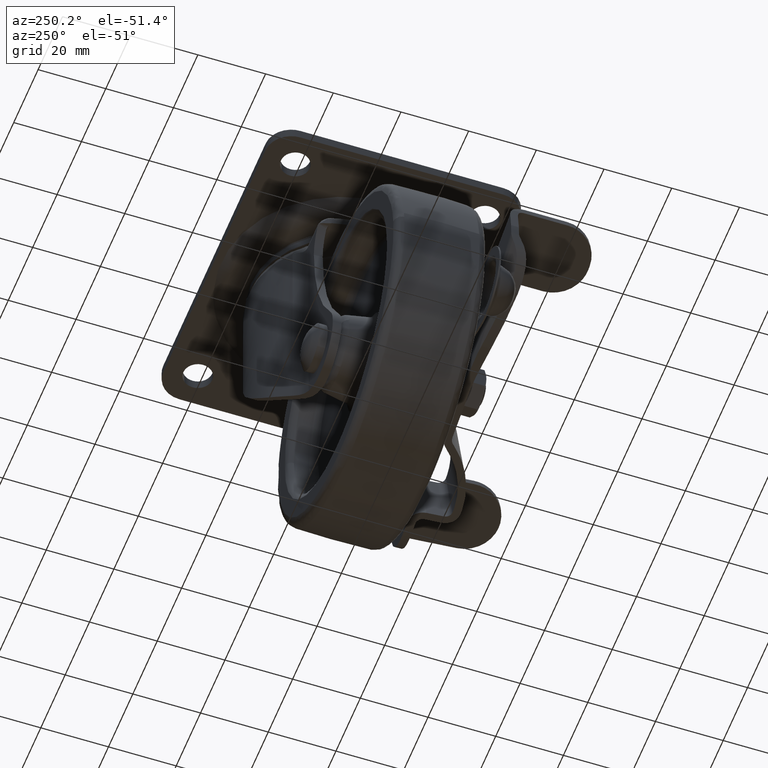
[diagram: clean part render]
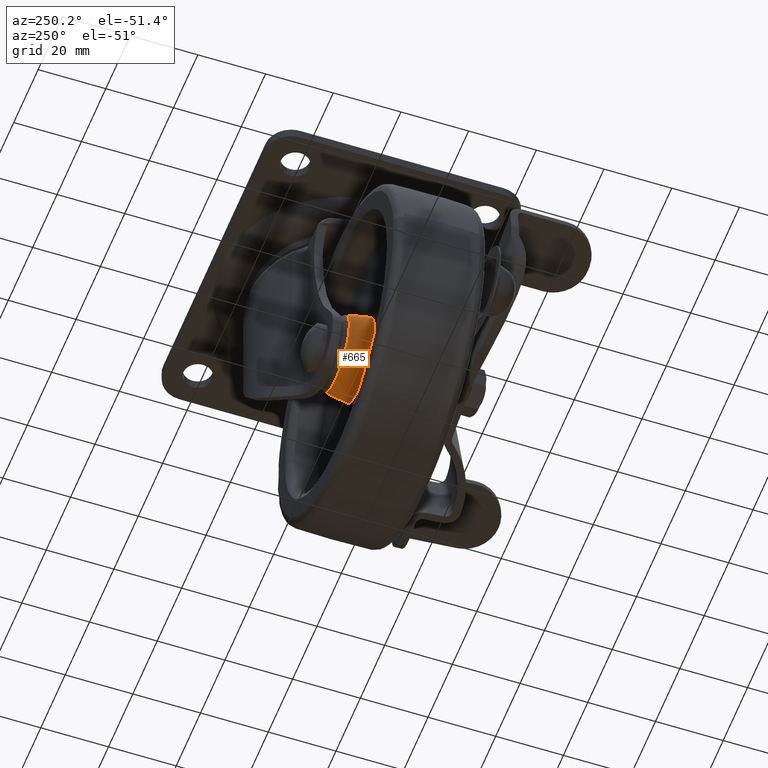
[diagram: same view with one face highlighted and labeled with its STEP entity id]
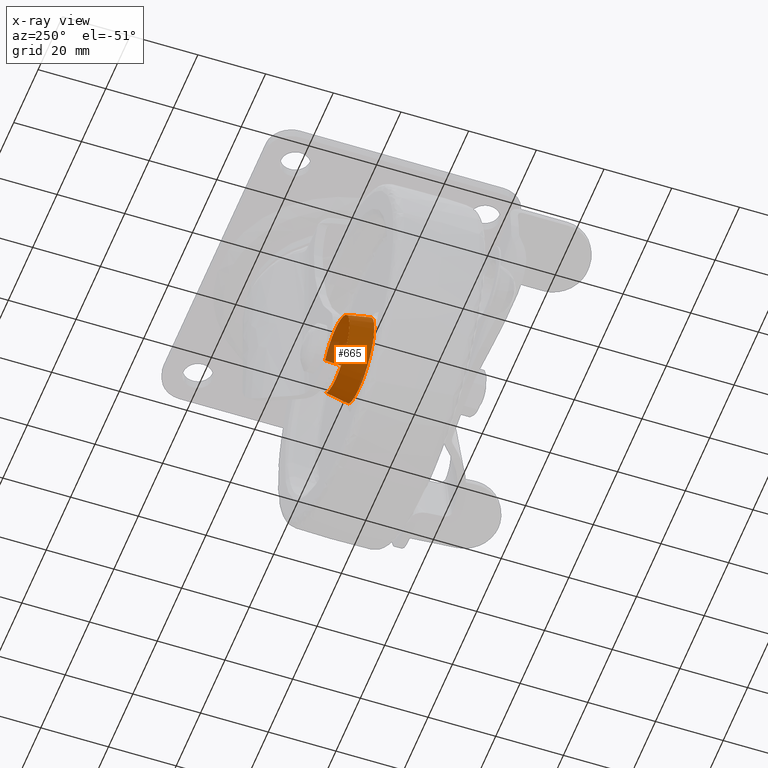
[diagram: x-ray of the same camera — body ghosted, the highlighted face saturated]
A machine part, auxiliary view. The second image highlights one B-rep face of the part: STEP entity #665.
The next image is the same camera in x-ray: the body ghosted, the highlighted face saturated — about 13% of this face is hidden behind the body in this view.
In plain terms, the highlighted face is a freeform B-spline surface patch.
Its self-contained STEP definition (entity closure, byte-faithful):
#503=CARTESIAN_POINT('',(-24.401336671402536,13.770910853114836,-65.728219563950134));
#504=CARTESIAN_POINT('',(-24.609446007682610,13.770910853114838,-65.482141333603863));
#505=CARTESIAN_POINT('',(-24.831288485573491,13.770910853114840,-65.248368139459373));
#506=CARTESIAN_POINT('',(-32.582714346114130,13.770910853114838,-57.080069625032770));
#507=CARTESIAN_POINT('',(-40.751012860540733,13.770910853114840,-64.831495485573413));
#508=CARTESIAN_POINT('',(-48.919311374967322,13.770910853114838,-72.582921346114048));
#509=CARTESIAN_POINT('',(-41.167885514426693,13.770910853114840,-80.751219860540644));
#510=CARTESIAN_POINT('',(-33.416459653886051,13.770910853114838,-88.919518374967254));
#511=CARTESIAN_POINT('',(-25.248161139459459,13.770910853114840,-81.168092514426604));
#512=CARTESIAN_POINT('',(-23.419009081490312,6.474746650965442,-64.897461221537796));
#513=CARTESIAN_POINT('',(-23.650894364612299,6.474746650965442,-64.623269197604699));
#514=CARTESIAN_POINT('',(-23.898081764820908,6.474746650965440,-64.362788028044989));
#515=CARTESIAN_POINT('',(-32.535087736775935,6.474746650965441,-55.261282792865799));
#516=CARTESIAN_POINT('',(-41.636592971955110,6.474746650965440,-63.898288764820833));
#517=CARTESIAN_POINT('',(-50.738098207134286,6.474746650965441,-72.535294736775853));
#518=CARTESIAN_POINT('',(-42.101092235179273,6.474746650965440,-81.636799971955028));
#519=CARTESIAN_POINT('',(-33.464086263224246,6.474746650965441,-90.738305207134218));
#520=CARTESIAN_POINT('',(-24.362581028045071,6.474746650965440,-82.101299235179198));
#528=(BOUNDED_SURFACE()B_SPLINE_SURFACE(2,1,((#503,#512),(#504,#513),(#505,#514),(#506,#515),(#507,#516),(#508,#517),(#509,#518),(#510,#519),(#511,#520)),.UNSPECIFIED.,.F.,.F.,.U.)B_SPLINE_SURFACE_WITH_KNOTS((3,2,2,2,3),(2,2),(0.0,0.831563299080405,21.620645776090509,42.409728253100617,63.198810730110722),(0.0,7.408720468617839),.UNSPECIFIED.)GEOMETRIC_REPRESENTATION_ITEM()RATIONAL_B_SPLINE_SURFACE(((0.977505800795127,0.977505800795127),(0.988284271247462,0.988284271247462),(1.0,1.0),(0.707106781186548,0.707106781186548),(1.0,1.0),(0.707106781186548,0.707106781186548),(1.0,1.0),(0.707106781186548,0.707106781186548),(1.0,1.0)))REPRESENTATION_ITEM('')SURFACE());
#529=CARTESIAN_POINT('',(-23.442967814089641,6.652701772315455,-64.917723216807673));
#530=VERTEX_POINT('',#529);
#531=CARTESIAN_POINT('',(-32.999587000000091,6.652701876018870,-60.483851255978351));
#532=VERTEX_POINT('',#531);
#533=CARTESIAN_POINT('',(-23.442967814089641,6.652701772315455,-64.917723216807673));
#534=CARTESIAN_POINT('',(-23.991470671423009,6.652701778267513,-64.269009827807423));
#535=CARTESIAN_POINT('',(-25.344139854286500,6.652701792945994,-62.965312212788568));
#536=CARTESIAN_POINT('',(-27.737742580982530,6.652701818920066,-61.520482757547342));
#537=CARTESIAN_POINT('',(-30.394404971300489,6.652701847748840,-60.663261204473827));
#538=CARTESIAN_POINT('',(-32.150063635028907,6.652701866800260,-60.483741669956942));
#539=CARTESIAN_POINT('',(-32.999587000000091,6.652701876018870,-60.483851255978351));
#540=B_SPLINE_CURVE_WITH_KNOTS('',3,(#533,#534,#535,#536,#537,#538,#539),.UNSPECIFIED.,.F.,.U.,(4,1,1,1,4),(0.000000111773311,2.548580342294876,5.606830076285748,8.325374895597131,10.873955126075581),.UNSPECIFIED.);
#541=EDGE_CURVE('',#530,#532,#540,.T.);
#542=ORIENTED_EDGE('',*,*,#541,.F.);
#543=CARTESIAN_POINT('',(-24.377961331097332,13.597295890912280,-65.708450945858999));
#544=VERTEX_POINT('',#543);
#545=CARTESIAN_POINT('',(-24.377961331097332,13.597295890912280,-65.708450945858999));
#546=CARTESIAN_POINT('',(-23.442967814089641,6.652701772315455,-64.917723216807673));
#547=QUASI_UNIFORM_CURVE('',1,(#545,#546),.UNSPECIFIED.,.F.,.U.);
#548=EDGE_CURVE('',#544,#530,#547,.T.);
#549=ORIENTED_EDGE('',*,*,#548,.F.);
#550=CARTESIAN_POINT('',(-32.999587000000091,13.597296000000039,-61.708376999999928));
#551=VERTEX_POINT('',#550);
#552=CARTESIAN_POINT('',(-24.377961331097332,13.597295890912280,-65.708450945858999));
#553=CARTESIAN_POINT('',(-25.267977682973999,13.597295902173490,-64.654087250650591));
#554=CARTESIAN_POINT('',(-26.877767041300181,13.597295922541850,-63.340243923209890));
#555=CARTESIAN_POINT('',(-29.883316085355201,13.597295960570460,-62.019522358702062));
#556=CARTESIAN_POINT('',(-31.773212491722781,13.597295984482921,-61.707639045754881));
#557=CARTESIAN_POINT('',(-32.999587000000091,13.597296000000039,-61.708376999999928));
#558=B_SPLINE_CURVE_WITH_KNOTS('',3,(#552,#553,#554,#555,#556,#557),.UNSPECIFIED.,.F.,.U.,(4,1,1,4),(0.000000115247673,4.138663787047926,6.131273167658232,9.810077018380214),.UNSPECIFIED.);
#559=EDGE_CURVE('',#544,#551,#558,.T.);
#560=ORIENTED_EDGE('',*,*,#559,.T.);
#561=CARTESIAN_POINT('',(-44.091001756276128,13.597295963084960,-70.883993477992618));
#562=VERTEX_POINT('',#561);
#563=CARTESIAN_POINT('',(-32.999587000000091,13.597296000000039,-61.708376999999928));
#564=CARTESIAN_POINT('',(-33.975123087775238,13.597296000001300,-61.708062707084707));
#565=CARTESIAN_POINT('',(-35.641446392585138,13.597295999125420,-61.925777012699733));
#566=CARTESIAN_POINT('',(-37.864530969335078,13.597295995850541,-62.739769305691432));
#567=CARTESIAN_POINT('',(-39.972229928189613,13.597295990831981,-63.987209593717687));
#568=CARTESIAN_POINT('',(-41.627506935762362,13.597295984415700,-65.582014071732289));
#569=CARTESIAN_POINT('',(-43.222595060072791,13.597295974902210,-67.946686888937407));
#570=CARTESIAN_POINT('',(-43.855757983401261,13.597295968065771,-69.645961314913791));
#571=CARTESIAN_POINT('',(-44.091001756276128,13.597295963084960,-70.883993477992618));
#572=B_SPLINE_CURVE_WITH_KNOTS('',3,(#563,#564,#565,#566,#567,#568,#569,#570,#571),.UNSPECIFIED.,.F.,.U.,(4,1,1,1,1,1,4),(0.000000255081002,2.926522180180733,4.999506572426848,7.072516991271884,10.242850391354409,11.828097094116540,15.608210136692630),.UNSPECIFIED.);
#573=EDGE_CURVE('',#551,#562,#572,.T.);
#574=ORIENTED_EDGE('',*,*,#573,.T.);
#575=CARTESIAN_POINT('',(-37.018780910270642,13.597295963104020,-83.551674091065905));
#576=VERTEX_POINT('',#575);
#577=CARTESIAN_POINT('',(-44.091001756276128,13.597295963084960,-70.883993477992618));
#578=CARTESIAN_POINT('',(-44.229471871863502,13.597295968249160,-71.609429525234475));
#579=CARTESIAN_POINT('',(-44.367064569801521,13.597295977616501,-73.128660346773401));
#580=CARTESIAN_POINT('',(-44.138025050424432,13.597295986315361,-75.178427218887592));
#581=CARTESIAN_POINT('',(-43.558342856433889,13.597295991277409,-77.151744383440146));
#582=CARTESIAN_POINT('',(-42.707368197909503,13.597295992428860,-78.892574265009301));
#583=CARTESIAN_POINT('',(-41.354621294382227,13.597295989217081,-80.709580423901627));
#584=CARTESIAN_POINT('',(-39.506669934147730,13.597295980419950,-82.360484812183330));
#585=CARTESIAN_POINT('',(-37.900765617840037,13.597295969702150,-83.215978468918607));
#586=CARTESIAN_POINT('',(-37.018780910270642,13.597295963104020,-83.551674091065905));
#587=B_SPLINE_CURVE_WITH_KNOTS('',3,(#577,#578,#579,#580,#581,#582,#583,#584,#585,#586),.UNSPECIFIED.,.F.,.U.,(4,1,1,1,1,1,1,4),(0.000000267244115,2.215601927341339,4.554376066399843,6.154610769093353,8.370167260513938,10.339620168837181,12.924585660987230,15.755670607653069),.UNSPECIFIED.);
#588=EDGE_CURVE('',#562,#576,#587,.T.);
#589=ORIENTED_EDGE('',*,*,#588,.T.);
#590=CARTESIAN_POINT('',(-32.999587000000091,13.597296000000039,-84.291211000000089));
#591=VERTEX_POINT('',#590);
#592=CARTESIAN_POINT('',(-37.018780910270642,13.597295963104020,-83.551674091065905));
#593=CARTESIAN_POINT('',(-35.738854386554841,13.597295987459660,-84.039853917818988));
#594=CARTESIAN_POINT('',(-34.369472919346833,13.597296000037201,-84.291955982525039));
#595=CARTESIAN_POINT('',(-32.999587000000091,13.597296000000039,-84.291211000000089));
#596=B_SPLINE_CURVE_WITH_KNOTS('',3,(#592,#593,#594,#595),.UNSPECIFIED.,.F.,.U.,(4,4),(0.000000017079796,4.109327700580328),.UNSPECIFIED.);
#597=EDGE_CURVE('',#576,#591,#596,.T.);
#598=ORIENTED_EDGE('',*,*,#597,.T.);
#599=CARTESIAN_POINT('',(-25.227088900063649,13.597296110471660,-81.190298021496886));
#600=VERTEX_POINT('',#599);
#601=CARTESIAN_POINT('',(-32.999587000000091,13.597296000000039,-84.291211000000089));
#602=CARTESIAN_POINT('',(-32.195889824466633,13.597296011423120,-84.291343437885061));
#603=CARTESIAN_POINT('',(-30.677921061901451,13.597296032998200,-84.128377158791920));
#604=CARTESIAN_POINT('',(-27.942661695024480,13.597296071874780,-83.257445554003624));
#605=CARTESIAN_POINT('',(-26.198166715432720,13.597296096669711,-82.113148387970099));
#606=CARTESIAN_POINT('',(-25.227088900063649,13.597296110471660,-81.190298021496886));
#607=B_SPLINE_CURVE_WITH_KNOTS('',3,(#601,#602,#603,#604,#605,#606),.UNSPECIFIED.,.F.,.U.,(4,1,1,4),(0.000000085662940,2.411075768998584,4.554223836648536,8.572699579189679),.UNSPECIFIED.);
#608=EDGE_CURVE('',#591,#600,#607,.T.);
#609=ORIENTED_EDGE('',*,*,#608,.T.);
#610=CARTESIAN_POINT('',(-24.384180978501849,6.652701981037846,-82.078537636680878));
#611=VERTEX_POINT('',#610);
#612=CARTESIAN_POINT('',(-25.227088900063649,13.597296110471660,-81.190298021496886));
#613=CARTESIAN_POINT('',(-24.384180978501849,6.652701981037846,-82.078537636680878));
#614=QUASI_UNIFORM_CURVE('',1,(#612,#613),.UNSPECIFIED.,.F.,.U.);
#615=EDGE_CURVE('',#600,#611,#614,.T.);
#616=ORIENTED_EDGE('',*,*,#615,.T.);
#617=CARTESIAN_POINT('',(-32.999587000000091,6.652701876018870,-85.515736744021652));
#618=VERTEX_POINT('',#617);
#619=CARTESIAN_POINT('',(-32.999587000000091,6.652701876018870,-85.515736744021652));
#620=CARTESIAN_POINT('',(-31.663208204847450,6.652701892308899,-85.516436509131253));
#621=CARTESIAN_POINT('',(-29.634623093914211,6.652701917036676,-85.187574921103419));
#622=CARTESIAN_POINT('',(-26.711235525035349,6.652701952671824,-83.939914742066435));
#623=CARTESIAN_POINT('',(-25.209647738634640,6.652701970975679,-82.862405808565612));
#624=CARTESIAN_POINT('',(-24.384180978501849,6.652701981037846,-82.078537636680878));
#625=B_SPLINE_CURVE_WITH_KNOTS('',3,(#619,#620,#621,#622,#623,#624),.UNSPECIFIED.,.F.,.U.,(4,1,1,4),(0.000000084075067,4.008823270045973,6.087443583445500,9.502387303998869),.UNSPECIFIED.);
#626=EDGE_CURVE('',#618,#611,#625,.T.);
#627=ORIENTED_EDGE('',*,*,#626,.F.);
#628=CARTESIAN_POINT('',(-37.454652452761337,6.652701875745342,-84.695999136045145));
#629=VERTEX_POINT('',#628);
#630=CARTESIAN_POINT('',(-37.454652452761337,6.652701875745342,-84.695999136045145));
#631=CARTESIAN_POINT('',(-36.035892423772907,6.652701875925841,-85.236952643187834));
#632=CARTESIAN_POINT('',(-34.518059529255829,6.652701876019226,-85.516712588679553));
#633=CARTESIAN_POINT('',(-32.999587000000091,6.652701876018870,-85.515736744021652));
#634=B_SPLINE_CURVE_WITH_KNOTS('',3,(#630,#631,#632,#633),.UNSPECIFIED.,.F.,.U.,(4,4),(0.000000018931307,4.554973971168121),.UNSPECIFIED.);
#635=EDGE_CURVE('',#629,#618,#634,.T.);
#636=ORIENTED_EDGE('',*,*,#635,.F.);
#637=CARTESIAN_POINT('',(-45.293837988380382,6.652701875408109,-70.654540195177518));
#638=VERTEX_POINT('',#637);
#639=CARTESIAN_POINT('',(-45.293837988380382,6.652701875408109,-70.654540195177518));
#640=CARTESIAN_POINT('',(-45.438760617776460,6.652701875484352,-71.413980316727177));
#641=CARTESIAN_POINT('',(-45.604843902755121,6.652701875641107,-73.141697725097643));
#642=CARTESIAN_POINT('',(-45.274794305519677,6.652701875846849,-76.098964966038636));
#643=CARTESIAN_POINT('',(-44.119128420661887,6.652701875968053,-79.053166926835246));
#644=CARTESIAN_POINT('',(-42.463247491050367,6.652701875981300,-81.301803276643795));
#645=CARTESIAN_POINT('',(-40.363323292017192,6.652701875925811,-83.261864968848613));
#646=CARTESIAN_POINT('',(-38.687560860331708,6.652701875833086,-84.227168422834211));
#647=CARTESIAN_POINT('',(-37.454652452761337,6.652701875745342,-84.695999136045145));
#648=B_SPLINE_CURVE_WITH_KNOTS('',3,(#639,#640,#641,#642,#643,#644,#645,#646,#647),.UNSPECIFIED.,.F.,.U.,(4,1,1,1,1,1,4),(0.000000261456826,2.319455027014891,5.184743536072265,8.868505879078436,11.733839024112960,13.507575897081541,17.464333562251259),.UNSPECIFIED.);
#649=EDGE_CURVE('',#638,#629,#648,.T.);
#650=ORIENTED_EDGE('',*,*,#649,.F.);
#651=CARTESIAN_POINT('',(-32.999587000000091,6.652701876018870,-60.483851255978351));
#652=CARTESIAN_POINT('',(-34.125958241874152,6.652701876018894,-60.483479095655717));
#653=CARTESIAN_POINT('',(-36.153192222823343,6.652701876002314,-60.759483472918269));
#654=CARTESIAN_POINT('',(-39.185987386534997,6.652701875930035,-61.963243435841321));
#655=CARTESIAN_POINT('',(-41.390628493493928,6.652701875833142,-63.576677839273181));
#656=CARTESIAN_POINT('',(-43.123741464688607,6.652701875715187,-65.541119292134439));
#657=CARTESIAN_POINT('',(-44.461126702785329,6.652701875585895,-67.694620161200859));
#658=CARTESIAN_POINT('',(-45.083126215472930,6.652701875474564,-69.548044498183032));
#659=CARTESIAN_POINT('',(-45.293837988380382,6.652701875408109,-70.654540195177518));
#660=B_SPLINE_CURVE_WITH_KNOTS('',3,(#651,#652,#653,#654,#655,#656,#657,#658,#659),.UNSPECIFIED.,.F.,.U.,(4,1,1,1,1,1,4),(0.000000265647607,3.379057478919492,6.082364564177082,9.731675492019761,11.488841369526330,13.921824114832861,17.300881328104559),.UNSPECIFIED.);
#661=EDGE_CURVE('',#532,#638,#660,.T.);
#662=ORIENTED_EDGE('',*,*,#661,.F.);
#663=EDGE_LOOP('',(#542,#549,#560,#574,#589,#598,#609,#616,#627,#636,#650,#662));
#664=FACE_OUTER_BOUND('',#663,.T.);
#665=ADVANCED_FACE('',(#664),#528,.T.);